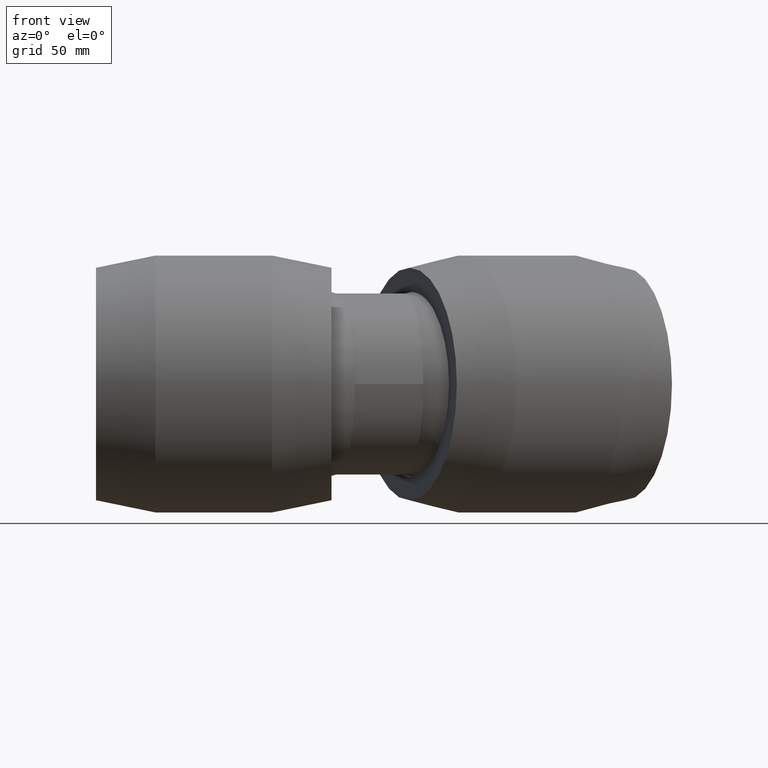
[diagram: clean part render]
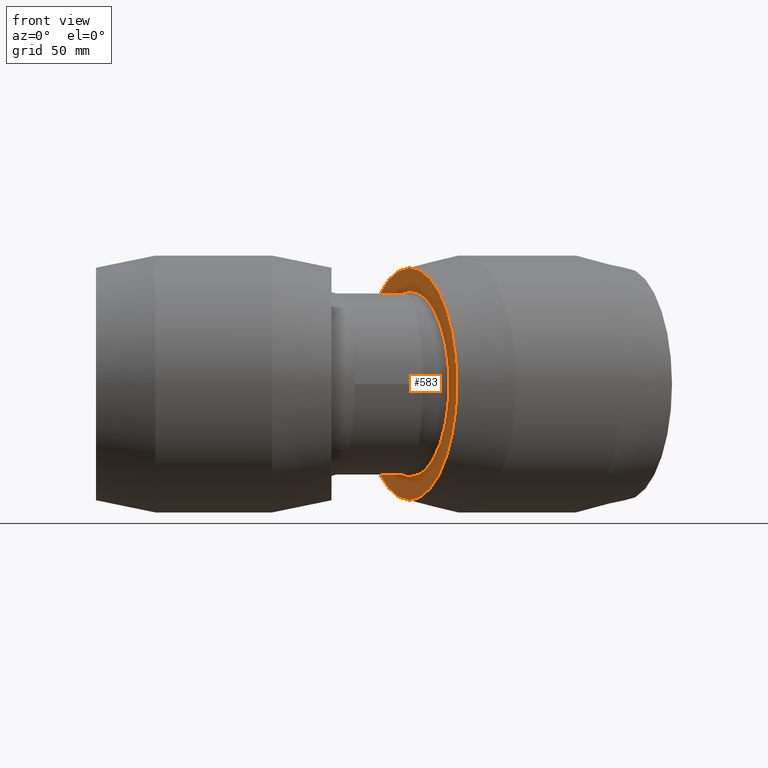
[diagram: same view with one face highlighted and labeled with its STEP entity id]
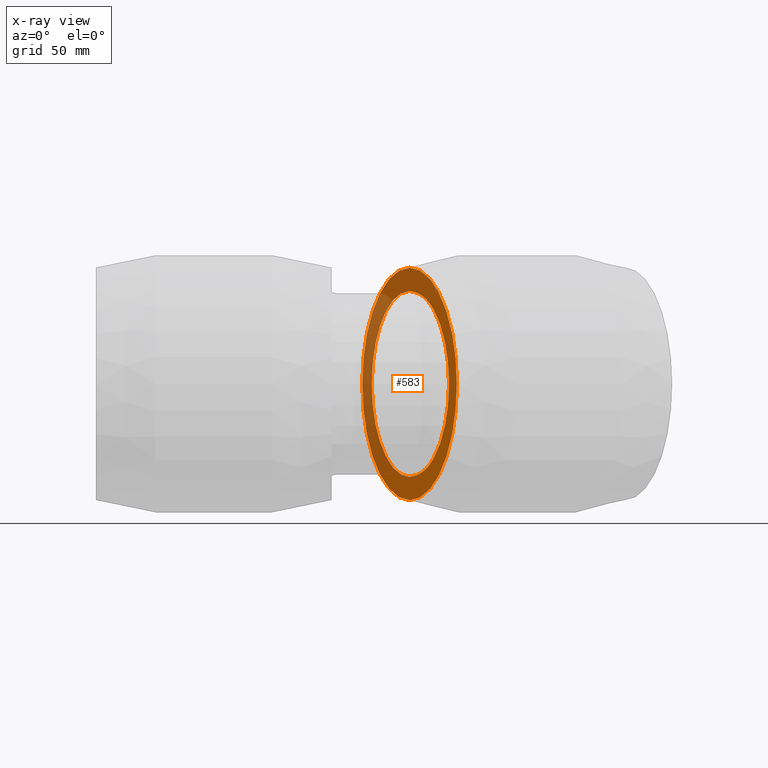
[diagram: x-ray of the same camera — body ghosted, the highlighted face saturated]
A machine part, front view. The second image highlights one B-rep face of the part: STEP entity #583.
The next image is the same camera in x-ray: the body ghosted, the highlighted face saturated — about 33% of this face is hidden behind the body in this view.
In plain terms, the highlighted planar face has unit normal (0.9135, 0.4067, 0).
Its self-contained STEP definition (entity closure, byte-faithful):
#41=PLANE('',#677);
#104=FACE_BOUND('',#247,.T.);
#155=FACE_OUTER_BOUND('',#246,.T.);
#246=EDGE_LOOP('',(#521));
#247=EDGE_LOOP('',(#522,#523));
#272=CIRCLE('',#595,71.2730112238207);
#298=CIRCLE('',#648,72.);
#312=CIRCLE('',#676,90.);
#320=VERTEX_POINT('',#893);
#321=VERTEX_POINT('',#944);
#364=VERTEX_POINT('',#1356);
#373=EDGE_CURVE('',#321,#320,#272,.T.);
#404=EDGE_CURVE('',#320,#321,#298,.T.);
#420=EDGE_CURVE('',#364,#364,#312,.T.);
#521=ORIENTED_EDGE('',*,*,#420,.F.);
#522=ORIENTED_EDGE('',*,*,#373,.T.);
#523=ORIENTED_EDGE('',*,*,#404,.T.);
#583=ADVANCED_FACE('',(#155,#104),#41,.F.);
#595=AXIS2_PLACEMENT_3D('',#945,#697,#698);
#648=AXIS2_PLACEMENT_3D('',#1245,#803,#804);
#676=AXIS2_PLACEMENT_3D('',#1357,#859,#860);
#677=AXIS2_PLACEMENT_3D('',#1358,#861,#862);
#697=DIRECTION('center_axis',(0.913545457642601,0.4067366430758,1.19788532833232E-16));
#698=DIRECTION('ref_axis',(1.31124873788268E-16,0.,-1.));
#803=DIRECTION('center_axis',(0.913545457642601,0.4067366430758,1.19788532833232E-16));
#804=DIRECTION('ref_axis',(1.19788532833232E-16,2.54618386665284E-17,-1.));
#859=DIRECTION('center_axis',(0.913545457642601,0.4067366430758,1.19788532833232E-16));
#860=DIRECTION('ref_axis',(1.19788532833232E-16,2.54618386665284E-17,-1.));
#861=DIRECTION('center_axis',(0.913545457642601,0.4067366430758,1.19788532833232E-16));
#862=DIRECTION('ref_axis',(0.,0.,-1.));
#893=CARTESIAN_POINT('',(157.949255200902,-1.42638317915205,-70.2864943083513));
#944=CARTESIAN_POINT('',(157.949255200902,-1.42638317915226,70.2864943083513));
#945=CARTESIAN_POINT('Origin',(153.142687247226,9.36934520107586,-2.13982852583597E-15));
#1245=CARTESIAN_POINT('Origin',(151.598316583783,12.8380585037065,3.78095315179061E-15));
#1356=CARTESIAN_POINT('',(114.992018706961,95.0571496915405,1.48938767180306E-15));
#1357=CARTESIAN_POINT('Origin',(151.598316583783,12.8380585037065,3.78095315179061E-15));
#1358=CARTESIAN_POINT('Origin',(122.313278282325,78.6133314539737,1.94770076780057E-15));